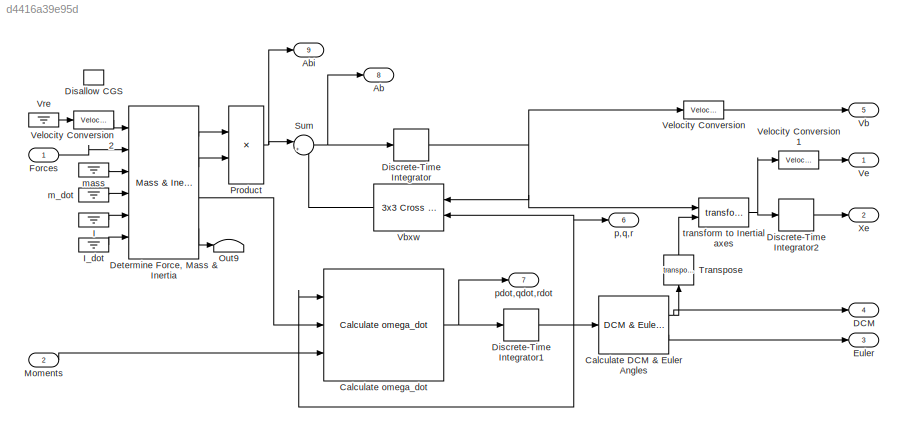
MODEL slx_d4416a39e95d
KIND model
CONFIG AbsTol = auto
CONFIG EnableMultiTasking = off
CONFIG FixedStep = auto
CONFIG MaxStep = auto
CONFIG MinStep = auto
CONFIG RelTol = 1e-3
CONFIG SampleTimeConstraint = Unconstrained
CONFIG SolverName = VariableStepAuto
CONFIG StartTime = 0.0
CONFIG StopTime = 10.0
BLOCK [Outport] Ab
  Port = 8
  Unit = m/s^2
  VectorParamsAs1DForOutWhenUnconnected = off
BLOCK [Outport] Abi
  Port = 9
  Unit = m/s^2
BLOCK [Reference] Calculate DCM & Euler Angles  REF=shared6dofsys/DCM & Euler Angles (Euler)  (lib defined in slx_91fbb8bad28b)
  Ports = [1, 2]
  SourceBlock = shared6dofsys/DCM & Euler Angles (Euler)
  SourceProductBaseCode = AE,PW,MT,UV,VE,VP
  SourceType = DCM & Euler Angles (Euler)
BLOCK [Reference] Calculate omega_dot  REF=shared6dofsys/Calculate omega_dot  (lib defined in slx_91fbb8bad28b)
  Ports = [3, 1]
  SourceBlock = shared6dofsys/Calculate omega_dot
  SourceProductBaseCode = AE,PW,MT,UV,VE,VP
BLOCK [Outport] DCM
  Port = 4
  Unit = 1
  VectorParamsAs1DForOutWhenUnconnected = off
BLOCK [Reference] Determine Force, Mass & Inertia  REF=shared6dofsys/Mass & Inertia (fixed)  (lib defined in slx_91fbb8bad28b)
  Ports = [6, 4]
  SourceBlock = shared6dofsys/Mass & Inertia (fixed)
  SourceProductBaseCode = AE,PW,MT,UV,VE,VP
  SourceType = Mass & Inertia (fixed)
BLOCK [UnitConfiguration] Disallow CGS
  AllowAllUnitSystems = off
  UnitSystemsStr = English,SI,SI (extended)
BLOCK [DiscreteIntegrator] Discrete-Time Integrator
  ICPrevOutput = DiscIntNeverNeededParam
  ICPrevScaledInput = DiscIntNeverNeededParam
  InitialConditionSetting = Auto
  Ports = [1, 1]
  SampleTime = SampleTime
BLOCK [DiscreteIntegrator] Discrete-Time Integrator1
  ICPrevOutput = DiscIntNeverNeededParam
  ICPrevScaledInput = DiscIntNeverNeededParam
  InitialConditionSetting = Auto
  Ports = [1, 1]
  SampleTime = SampleTime
BLOCK [DiscreteIntegrator] Discrete-Time Integrator2
  ICPrevOutput = DiscIntNeverNeededParam
  ICPrevScaledInput = DiscIntNeverNeededParam
  InitialConditionSetting = Auto
  Ports = [1, 1]
  SampleTime = SampleTime
BLOCK [Outport] Euler
  Port = 3
  Unit = rad
  VectorParamsAs1DForOutWhenUnconnected = off
BLOCK [Inport] Forces
  PortDimensions = 3
  Unit = N
BLOCK [Ground] I
BLOCK [Ground] I_dot
BLOCK [Inport] Moments
  Port = 2
  PortDimensions = 3
  Unit = N*m
BLOCK [Terminator] Out9
BLOCK [Product] Product
  Inputs = */
  OutDataTypeStr = Inherit: Same as first input
  Ports = [2, 1]
  SaturateOnIntegerOverflow = on
BLOCK [Sum] Sum
  Inputs = |++
  Ports = [2, 1]
  SaturateOnIntegerOverflow = on
BLOCK [Math] Transpose
  NameLocation = right
  Operator = transpose
  Ports = [1, 1]
  SignedPower = on
BLOCK [Outport] Vb
  Port = 5
  Unit = m/s
  VectorParamsAs1DForOutWhenUnconnected = off
BLOCK [Reference] Vbxw  REF=sharedutil/3x3 Cross Product
  Ports = [2, 1]
  SourceBlock = sharedutil/3x3 Cross Product
  SourceProductBaseCode = AE,PW,MT,UV,VE,VP
  SourceType = CrossProduct
BLOCK [Outport] Ve
  Unit = m/s
  VectorParamsAs1DForOutWhenUnconnected = off
BLOCK [Reference] Velocity Conversion  REF=shared6dof/6DOF (Euler Angles)/Velocity Conversion
  Ports = [1, 1]
  SourceBlock = shared6dof/6DOF (Euler Angles)/Velocity Conversion
  SourceProductBaseCode = AE,PW,MT,UV,VE,VP
  SourceType = SubSystem
BLOCK [Reference] Velocity Conversion1  REF=shared6dof/6DOF (Euler Angles)/Velocity Conversion1
  Ports = [1, 1]
  SourceBlock = shared6dof/6DOF (Euler Angles)/Velocity Conversion1
  SourceProductBaseCode = AE,PW,MT,UV,VE,VP
  SourceType = SubSystem
BLOCK [Reference] Velocity Conversion2  REF=shared6dof/6DOF (Euler Angles)/Velocity Conversion2
  Ports = [1, 1]
  SourceBlock = shared6dof/6DOF (Euler Angles)/Velocity Conversion2
  SourceProductBaseCode = AE,PW,MT,UV,VE,VP
  SourceType = SubSystem
BLOCK [Ground] Vre
BLOCK [Outport] Xe
  Port = 2
  Unit = m
  VectorParamsAs1DForOutWhenUnconnected = off
BLOCK [Ground] m_dot
BLOCK [Ground] mass
BLOCK [Outport] p,q,r
  Port = 6
  Unit = rad/s
  VectorParamsAs1DForOutWhenUnconnected = off
BLOCK [Outport] pdot,qdot,rdot
  Port = 7
  Unit = rad/s^2
  VectorParamsAs1DForOutWhenUnconnected = off
BLOCK [Reference] transform to Inertial axes   REF=shared6dof/6DOF (Euler Angles)/transform to
Inertial axes 
  Ports = [2, 1]
  SourceBlock = shared6dof/6DOF (Euler Angles)/transform to\nInertial axes
  SourceProductBaseCode = AE,PW,MT,UV,VE,VP
  SourceType = Vector Transformation
NET Calculate DCM & Euler Angles:1 -> DCM:1, Transpose:1
LINE Calculate DCM & Euler Angles:2 -> Euler:1
NET Calculate omega_dot:1 -> Discrete-Time Integrator1:1, pdot,qdot,rdot:1
LINE Determine Force, Mass & Inertia:1 -> Product:1
LINE Determine Force, Mass & Inertia:2 -> Product:2
LINE Determine Force, Mass & Inertia:3 -> Calculate omega_dot:2
LINE Determine Force, Mass & Inertia:4 -> Out9:1
NET Discrete-Time Integrator1:1 -> Calculate DCM & Euler Angles:1, Calculate omega_dot:1, Vbxw:2, p,q,r:1
LINE Discrete-Time Integrator2:1 -> Xe:1
NET Discrete-Time Integrator:1 -> Vbxw:1, Velocity Conversion:1, transform to Inertial axes :1
LINE Forces:1 -> Determine Force, Mass & Inertia:2
LINE I:1 -> Determine Force, Mass & Inertia:5
LINE I_dot:1 -> Determine Force, Mass & Inertia:6
LINE Moments:1 -> Calculate omega_dot:3
NET Product:1 -> Abi:1, Sum:1
NET Sum:1 -> Ab:1, Discrete-Time Integrator:1
LINE Transpose:1 -> transform to Inertial axes :2
LINE Vbxw:1 -> Sum:2
LINE Velocity Conversion1:1 -> Ve:1
LINE Velocity Conversion2:1 -> Determine Force, Mass & Inertia:1
LINE Velocity Conversion:1 -> Vb:1
LINE Vre:1 -> Velocity Conversion2:1
LINE m_dot:1 -> Determine Force, Mass & Inertia:4
LINE mass:1 -> Determine Force, Mass & Inertia:3
NET transform to Inertial axes :1 -> Discrete-Time Integrator2:1, Velocity Conversion1:1
note: NET lines group one-source signal fan-out (src -> all destinations, sorted); 1:1 wires keep LINE
